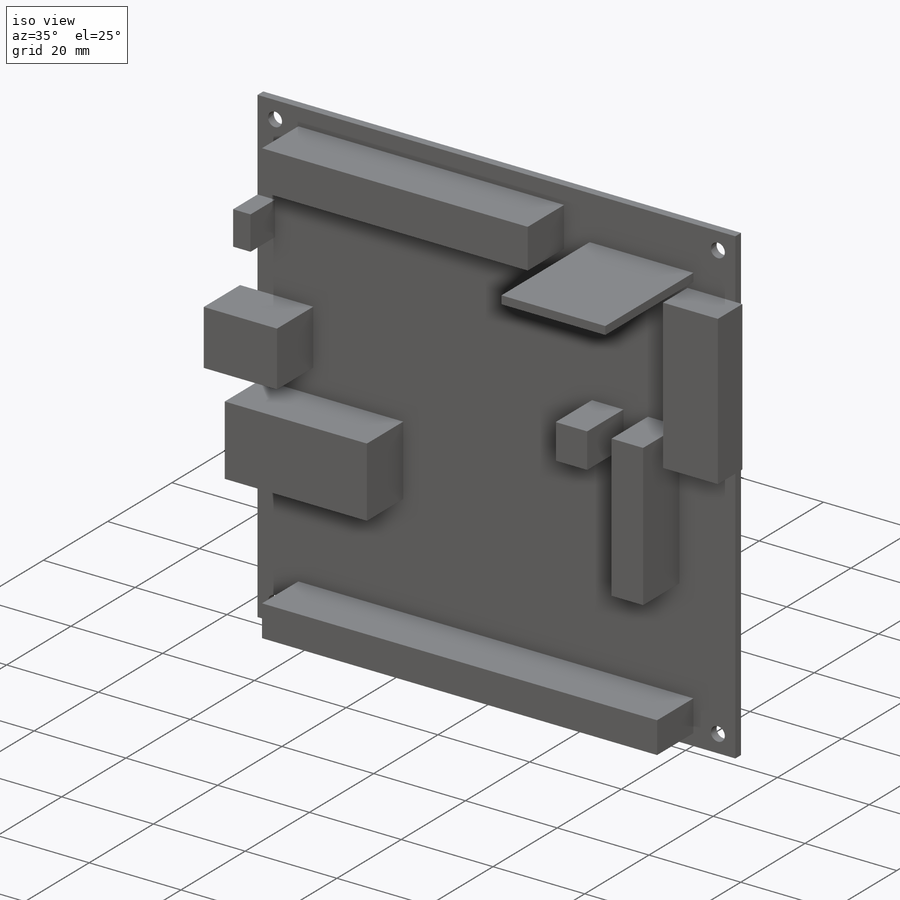
[diagram: iso view]
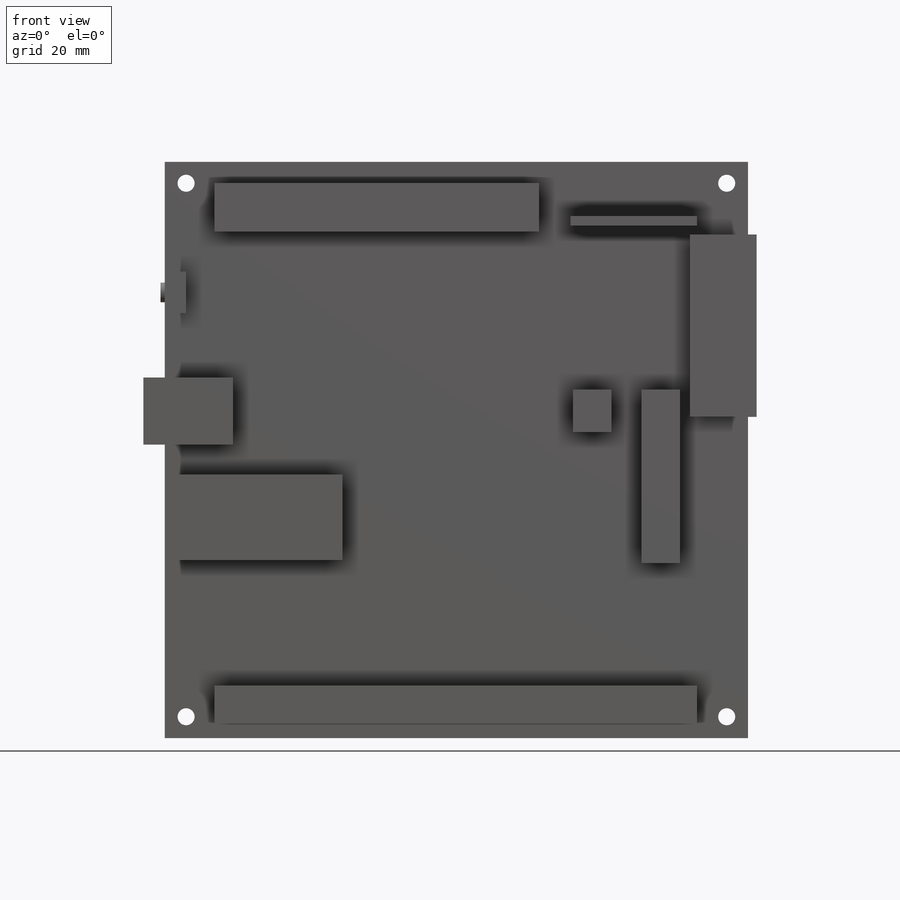
[diagram: front view]
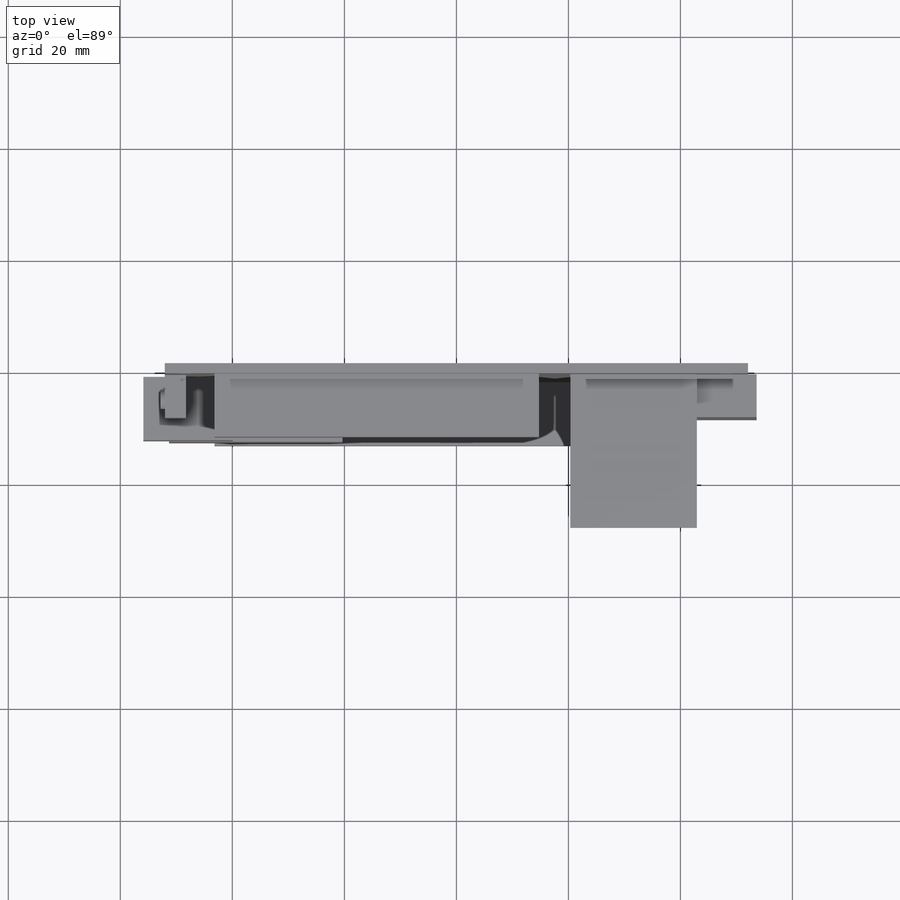
[diagram: top view]
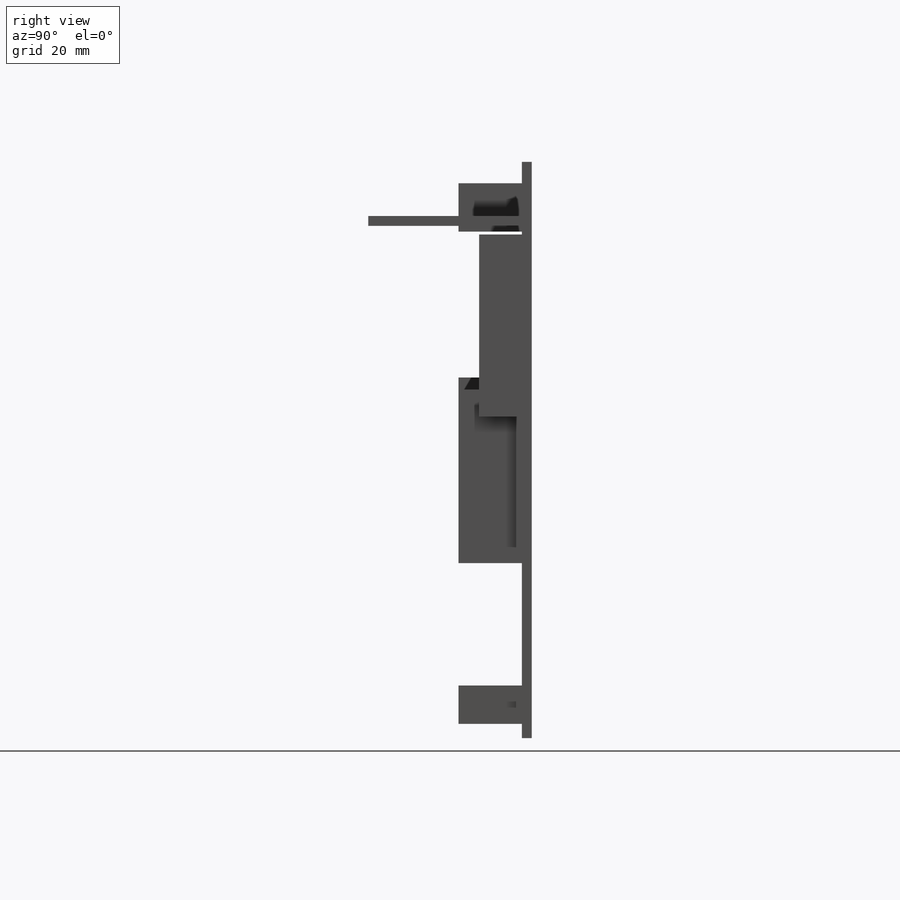
[diagram: right view]
SOLIDWORKS PART (.sldprt)
format: sldprt  version: not decoded by parser v0  size: 293,888 bytes
history: native  units: mm
features: sketch x5, extrude x5, material x1 (+11 scaffold rows collapsed)
feature tree (22):
  scaffold x11  (default folders/planes/origin — collapsed)
  material  "Material <not specified>"
  sketch  "Sketch1"  dims[c1.D5=3.048mm c1.D1=~90.820039mm c1.D2=~90.820039mm c2.D1=96.52mm c2.D2=95.25mm c2.D3=102.87mm c2.D4=104.14mm]
  extrude  "Boss-Extrude1"  Depth=1.778mm
  sketch  "Sketch2"  dims[c1.D1=3.81mm c1.D2=8.636mm c1.D3=8.89mm c1.D4=57.912mm c1.D5=64.77mm c1.D6=12.319mm c1.D7=3.81mm c1.D8=15.9512mm c1.D9=46.99mm c1.D10=31.75mm c1.D11=30.988mm c1.D12=15.24mm c1.D13=86.106mm c1.D14=9.398mm c1.D15=6.858mm c1.D16=8.89mm c1.D17=62.23mm c1.D18=6.858mm c1.D19=19.05mm c1.D20=30.988mm c1.D21=7.62mm c1.D22=5.334mm c2.D5=52.39mm c2.D6=64.39mm]
  extrude  "Boss-Extrude2"  Depth=11.303mm
  sketch  "Sketch3"  dims[c1.D1=27.178mm c1.D2=7.366mm c1.D3=3.81mm c1.D4=11.938mm c1.D5=10.414mm c1.D6=32.6644mm c1.D7=45.212mm c2.D1=79.57mm c2.D6=57.34mm c2.D7=89.92mm]
  extrude  "Boss-Extrude3"  Depth=7.62mm
  sketch  "Sketch4"  dims[D3=3.4925mm D1=6.096mm D2=79.57mm]
  extrude  "Boss-Extrude4"  Depth=0.762mm
  sketch  "Sketch5"  dims[D1=11.43mm D2=1.778mm D3=31.75mm D4=22.606mm]
  extrude  "Boss-Extrude5"  Depth=27.432mm
decode coverage: 10 of 10 modeling features carry decoded parameters
note: ~ marks probable driven/reference dimensions
note: suppression state not decoded; provenance and decode notes live in map.json
